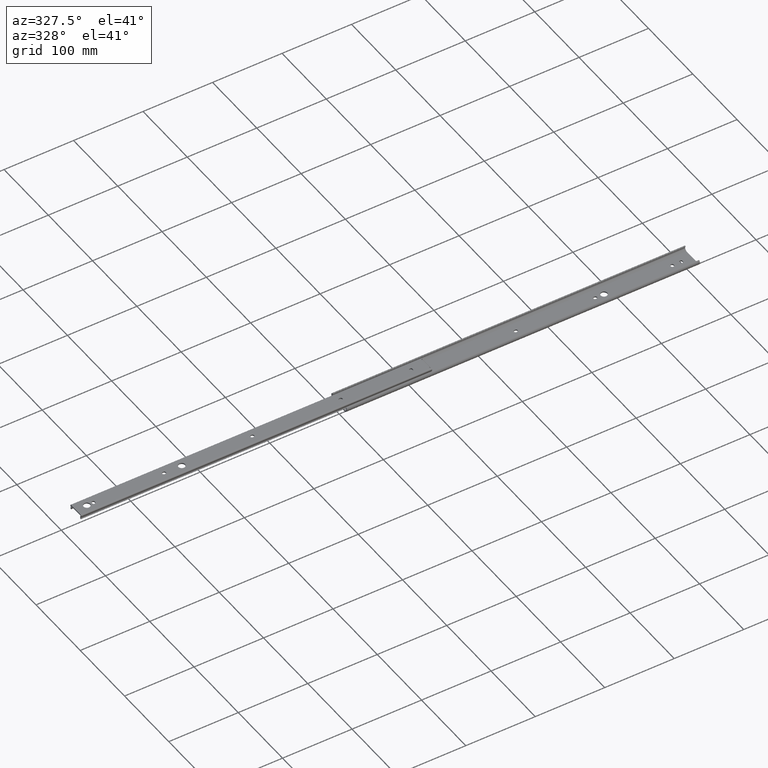
[diagram: clean part render]
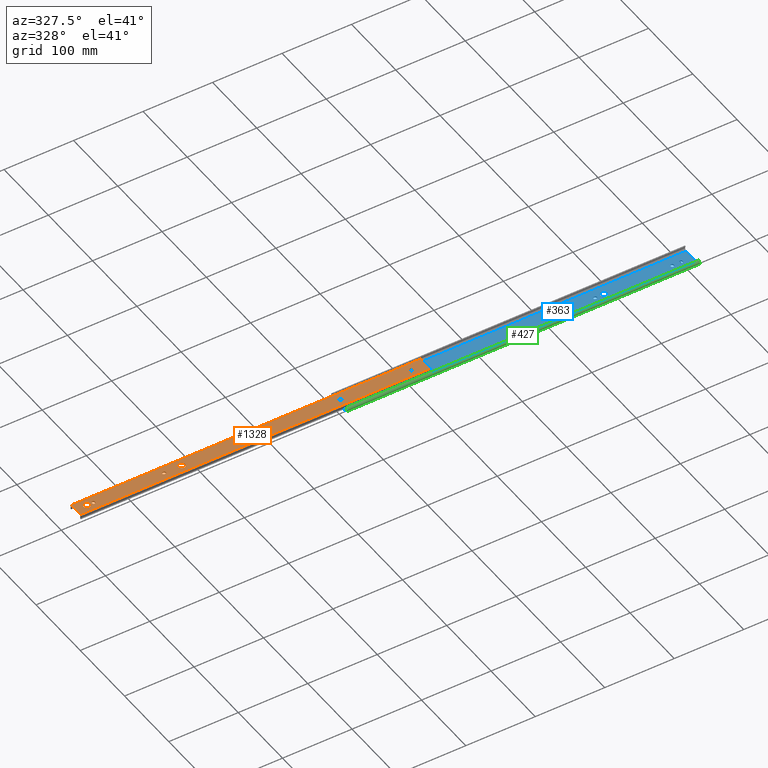
[diagram: same view with three faces highlighted in distinct colors, each labeled with its STEP entity id]
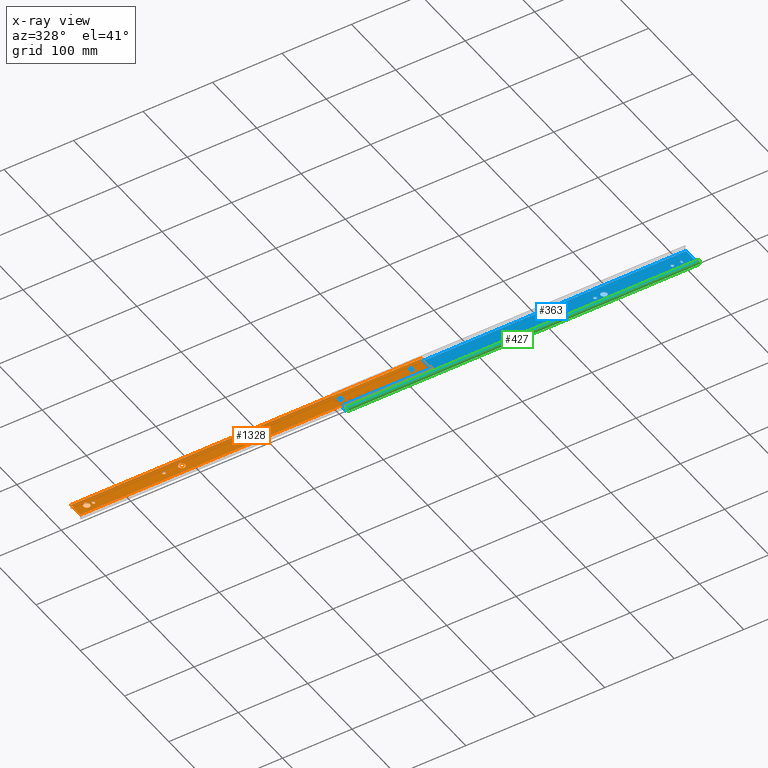
[diagram: x-ray of the same camera — body ghosted, the three highlighted faces saturated]
A machine part, auxiliary view with three faces highlighted in distinct colors.
The next image is the same camera in x-ray (body ghosted, the three faces saturated) — at least one of them is partly hidden behind the body in this view.
Their STEP definitions:

[orange] entity #1328 — the highlighted planar face has unit normal (0, 0, 1).
#2 = DIRECTION ( 'NONE',  ( 0.0000000000000000000, 1.000000000000000000, 0.0000000000000000000 ) ) ;
#32 = CARTESIAN_POINT ( 'NONE',  ( 482.5999999999999700, -0.4000000000000092900, 0.0000000000000000000 ) ) ;
#35 = CARTESIAN_POINT ( 'NONE',  ( 152.4000000000000100, 0.0000000000000000000, 0.0000000000000000000 ) ) ;
#65 = FACE_OUTER_BOUND ( 'NONE', #712, .T. ) ;
#74 = LINE ( 'NONE', #2935, #2507 ) ;
#81 = DIRECTION ( 'NONE',  ( 0.0000000000000000000, 0.0000000000000000000, 1.000000000000000000 ) ) ;
#86 = DIRECTION ( 'NONE',  ( 1.000000000000000000, 0.0000000000000000000, 0.0000000000000000000 ) ) ;
#88 = CARTESIAN_POINT ( 'NONE',  ( 503.3999999999999800, 0.0000000000000000000, 0.0000000000000000000 ) ) ;
#108 = EDGE_CURVE ( 'NONE', #1448, #3903, #3783, .T. ) ;
#117 = ORIENTED_EDGE ( 'NONE', *, *, #873, .F. ) ;
#120 = CIRCLE ( 'NONE', #730, 2.249999999999974200 ) ;
#137 = DIRECTION ( 'NONE',  ( 0.0000000000000000000, 0.0000000000000000000, 1.000000000000000000 ) ) ;
#151 = CARTESIAN_POINT ( 'NONE',  ( 505.0000000000000000, 9.799999999999993600, 0.0000000000000000000 ) ) ;
#179 = VERTEX_POINT ( 'NONE', #3019 ) ;
#199 = ORIENTED_EDGE ( 'NONE', *, *, #1190, .F. ) ;
#217 = CIRCLE ( 'NONE', #3415, 4.750000000000004400 ) ;
#219 = CARTESIAN_POINT ( 'NONE',  ( 380.5999999999999700, 2.249999999999947200, 0.0000000000000000000 ) ) ;
#225 = EDGE_CURVE ( 'NONE', #2088, #3443, #74, .T. ) ;
#227 = ORIENTED_EDGE ( 'NONE', *, *, #2655, .F. ) ;
#232 = ORIENTED_EDGE ( 'NONE', *, *, #1025, .F. ) ;
#235 = DIRECTION ( 'NONE',  ( 0.0000000000000000000, 0.0000000000000000000, 1.000000000000000000 ) ) ;
#252 = ORIENTED_EDGE ( 'NONE', *, *, #4129, .F. ) ;
#259 = EDGE_CURVE ( 'NONE', #179, #1049, #1576, .T. ) ;
#261 = DIRECTION ( 'NONE',  ( 0.0000000000000000000, 0.0000000000000000000, 1.000000000000000000 ) ) ;
#286 = EDGE_LOOP ( 'NONE', ( #1586, #345 ) ) ;
#287 = VERTEX_POINT ( 'NONE', #151 ) ;
#289 = AXIS2_PLACEMENT_3D ( 'NONE', #2034, #137, #2346 ) ;
#291 = CARTESIAN_POINT ( 'NONE',  ( 126.5999999999999900, -2.250000000000005800, 0.0000000000000000000 ) ) ;
#306 = LINE ( 'NONE', #4115, #1899 ) ;
#312 = LINE ( 'NONE', #291, #2761 ) ;
#328 = CARTESIAN_POINT ( 'NONE',  ( 126.5999999999999900, 2.476904576198428100E-015, 0.0000000000000000000 ) ) ;
#340 = DIRECTION ( 'NONE',  ( 0.0000000000000000000, 0.0000000000000000000, 1.000000000000000000 ) ) ;
#345 = ORIENTED_EDGE ( 'NONE', *, *, #2667, .F. ) ;
#348 = DIRECTION ( 'NONE',  ( 1.000000000000000000, 0.0000000000000000000, 0.0000000000000000000 ) ) ;
#354 = CIRCLE ( 'NONE', #3116, 2.250000000000001800 ) ;
#355 = AXIS2_PLACEMENT_3D ( 'NONE', #793, #81, #2724 ) ;
#367 = CARTESIAN_POINT ( 'NONE',  ( 505.0000000000000000, 0.0000000000000000000, 0.0000000000000000000 ) ) ;
#374 = DIRECTION ( 'NONE',  ( 1.000000000000000000, 0.0000000000000000000, 0.0000000000000000000 ) ) ;
#387 = EDGE_CURVE ( 'NONE', #1851, #3759, #120, .T. ) ;
#403 = DIRECTION ( 'NONE',  ( -0.0000000000000000000, 1.000000000000000000, -0.0000000000000000000 ) ) ;
#407 = LINE ( 'NONE', #3483, #2851 ) ;
#411 = VECTOR ( 'NONE', #403, 1000.000000000000000 ) ;
#418 = ORIENTED_EDGE ( 'NONE', *, *, #2444, .F. ) ;
#419 = ORIENTED_EDGE ( 'NONE', *, *, #108, .F. ) ;
#423 = ORIENTED_EDGE ( 'NONE', *, *, #387, .F. ) ;
#455 = CIRCLE ( 'NONE', #2035, 2.250000000000001800 ) ;
#459 = CARTESIAN_POINT ( 'NONE',  ( 482.5999999999999700, 0.3999999999999867600, 0.0000000000000000000 ) ) ;
#463 = CIRCLE ( 'NONE', #2101, 4.750000000000004400 ) ;
#509 = CARTESIAN_POINT ( 'NONE',  ( 11.15000000000000000, 5.817072295949927400E-016, 0.0000000000000000000 ) ) ;
#517 = LINE ( 'NONE', #88, #411 ) ;
#526 = DIRECTION ( 'NONE',  ( -0.0000000000000000000, 1.000000000000000000, -0.0000000000000000000 ) ) ;
#530 = CARTESIAN_POINT ( 'NONE',  ( 503.3999999999999800, -8.199999999999999300, 0.0000000000000000000 ) ) ;
#564 = CIRCLE ( 'NONE', #3522, 2.249999999999974200 ) ;
#570 = VECTOR ( 'NONE', #2592, 1000.000000000000000 ) ;
#578 = CARTESIAN_POINT ( 'NONE',  ( 23.14999999999999900, -0.3999999999999946900, 0.0000000000000000000 ) ) ;
#579 = DIRECTION ( 'NONE',  ( 0.0000000000000000000, 0.0000000000000000000, 1.000000000000000000 ) ) ;
#611 = CARTESIAN_POINT ( 'NONE',  ( 505.0000000000000000, -10.42509259386300400, 2.168404344971008900E-016 ) ) ;
#632 = CARTESIAN_POINT ( 'NONE',  ( 254.4000000000000100, 7.078553336297639100E-015, 0.0000000000000000000 ) ) ;
#701 = VERTEX_POINT ( 'NONE', #219 ) ;
#705 = VECTOR ( 'NONE', #2784, 1000.000000000000000 ) ;
#708 = EDGE_CURVE ( 'NONE', #4137, #2525, #312, .T. ) ;
#712 = EDGE_LOOP ( 'NONE', ( #2490, #1687, #227, #3518, #1645, #3385, #232, #1221, #1787, #2305 ) ) ;
#716 = DIRECTION ( 'NONE',  ( 0.0000000000000000000, 0.0000000000000000000, 1.000000000000000000 ) ) ;
#726 = EDGE_CURVE ( 'NONE', #4064, #3045, #1271, .T. ) ;
#730 = AXIS2_PLACEMENT_3D ( 'NONE', #632, #4124, #2407 ) ;
#750 = DIRECTION ( 'NONE',  ( 1.000000000000000000, -0.0000000000000000000, -0.0000000000000000000 ) ) ;
#761 = DIRECTION ( 'NONE',  ( -1.000000000000000000, -0.0000000000000000000, -0.0000000000000000000 ) ) ;
#768 = CIRCLE ( 'NONE', #1572, 4.750000000000000900 ) ;
#769 = EDGE_CURVE ( 'NONE', #1049, #1167, #3411, .T. ) ;
#780 = DIRECTION ( 'NONE',  ( 0.0000000000000000000, 1.000000000000000000, 0.0000000000000000000 ) ) ;
#793 = CARTESIAN_POINT ( 'NONE',  ( 15.90000000000000000, 0.0000000000000000000, 0.0000000000000000000 ) ) ;
#842 = CARTESIAN_POINT ( 'NONE',  ( 27.65000000000000200, -0.3999999999999999700, 0.0000000000000000000 ) ) ;
#873 = EDGE_CURVE ( 'NONE', #981, #2029, #3105, .T. ) ;
#881 = CARTESIAN_POINT ( 'NONE',  ( 253.5999999999999900, -2.250000000000033800, 0.0000000000000000000 ) ) ;
#888 = CARTESIAN_POINT ( 'NONE',  ( 254.4000000000000100, -2.249999999999992900, 0.0000000000000000000 ) ) ;
#912 = VERTEX_POINT ( 'NONE', #1447 ) ;
#919 = FACE_BOUND ( 'NONE', #1364, .T. ) ;
#943 = VERTEX_POINT ( 'NONE', #3061 ) ;
#954 = AXIS2_PLACEMENT_3D ( 'NONE', #2130, #235, #2449 ) ;
#956 = CARTESIAN_POINT ( 'NONE',  ( 256.6499999999999800, 7.078553336297639100E-015, 0.0000000000000000000 ) ) ;
#981 = VERTEX_POINT ( 'NONE', #509 ) ;
#994 = EDGE_CURVE ( 'NONE', #2251, #3932, #4039, .T. ) ;
#1007 = EDGE_CURVE ( 'NONE', #2525, #2695, #1274, .T. ) ;
#1025 = EDGE_CURVE ( 'NONE', #3045, #2942, #2110, .T. ) ;
#1041 = ORIENTED_EDGE ( 'NONE', *, *, #3387, .F. ) ;
#1049 = VERTEX_POINT ( 'NONE', #3409 ) ;
#1059 = CARTESIAN_POINT ( 'NONE',  ( 505.0000000000000000, 10.42509259386300400, 2.168404344971008900E-016 ) ) ;
#1064 = EDGE_CURVE ( 'NONE', #1167, #2775, #1909, .T. ) ;
#1083 = VERTEX_POINT ( 'NONE', #842 ) ;
#1084 = CARTESIAN_POINT ( 'NONE',  ( 254.4000000000000100, 2.249999999999965800, 0.0000000000000000000 ) ) ;
#1102 = VERTEX_POINT ( 'NONE', #1718 ) ;
#1125 = VECTOR ( 'NONE', #1291, 1000.000000000000000 ) ;
#1150 = ORIENTED_EDGE ( 'NONE', *, *, #2205, .F. ) ;
#1151 = ORIENTED_EDGE ( 'NONE', *, *, #2458, .F. ) ;
#1167 = VERTEX_POINT ( 'NONE', #2413 ) ;
#1172 = VECTOR ( 'NONE', #761, 1000.000000000000000 ) ;
#1176 = CARTESIAN_POINT ( 'NONE',  ( 126.5999999999999900, 2.249999999999993800, 0.0000000000000000000 ) ) ;
#1182 = AXIS2_PLACEMENT_3D ( 'NONE', #1523, #3762, #1835 ) ;
#1184 = ORIENTED_EDGE ( 'NONE', *, *, #769, .F. ) ;
#1190 = EDGE_CURVE ( 'NONE', #2029, #981, #768, .T. ) ;
#1204 = DIRECTION ( 'NONE',  ( -0.0000000000000000000, 1.000000000000000000, -0.0000000000000000000 ) ) ;
#1221 = ORIENTED_EDGE ( 'NONE', *, *, #726, .F. ) ;
#1258 = LINE ( 'NONE', #2208, #2179 ) ;
#1263 = CARTESIAN_POINT ( 'NONE',  ( 503.3999999999999800, 9.799999999999993600, 0.0000000000000000000 ) ) ;
#1267 = CARTESIAN_POINT ( 'NONE',  ( 484.8499999999999700, 0.4000000000000090200, 0.0000000000000000000 ) ) ;
#1270 = VECTOR ( 'NONE', #2, 1000.000000000000000 ) ;
#1271 = LINE ( 'NONE', #3657, #1172 ) ;
#1274 = CIRCLE ( 'NONE', #2260, 2.250000000000001800 ) ;
#1291 = DIRECTION ( 'NONE',  ( 0.0000000000000000000, -1.000000000000000000, 0.0000000000000000000 ) ) ;
#1300 = VERTEX_POINT ( 'NONE', #1782 ) ;
#1302 = DIRECTION ( 'NONE',  ( 1.000000000000000000, 0.0000000000000000000, 0.0000000000000000000 ) ) ;
#1328 = ADVANCED_FACE ( 'NONE', ( #2810, #1865, #3556, #3465, #2596, #1757, #919, #65 ), #3944, .T. ) ;
#1341 = DIRECTION ( 'NONE',  ( -1.000000000000000000, -0.0000000000000000000, -0.0000000000000000000 ) ) ;
#1343 = CARTESIAN_POINT ( 'NONE',  ( 25.39999999999999900, 0.3999999999999960800, 0.0000000000000000000 ) ) ;
#1346 = EDGE_CURVE ( 'NONE', #1300, #2572, #1660, .T. ) ;
#1364 = EDGE_LOOP ( 'NONE', ( #199, #117 ) ) ;
#1376 = DIRECTION ( 'NONE',  ( -1.000000000000000000, -0.0000000000000000000, -0.0000000000000000000 ) ) ;
#1400 = EDGE_CURVE ( 'NONE', #4064, #3443, #3925, .T. ) ;
#1417 = CARTESIAN_POINT ( 'NONE',  ( 15.90000000000000000, 0.0000000000000000000, 0.0000000000000000000 ) ) ;
#1421 = LINE ( 'NONE', #3856, #1125 ) ;
#1446 = AXIS2_PLACEMENT_3D ( 'NONE', #2236, #340, #2566 ) ;
#1447 = CARTESIAN_POINT ( 'NONE',  ( 27.65000000000000200, 0.3999999999999960800, 0.0000000000000000000 ) ) ;
#1448 = VERTEX_POINT ( 'NONE', #2470 ) ;
#1459 = CARTESIAN_POINT ( 'NONE',  ( 127.4000000000000200, 2.249999999999993800, 0.0000000000000000000 ) ) ;
#1523 = CARTESIAN_POINT ( 'NONE',  ( 127.4000000000000200, 2.574876320130218100E-015, 0.0000000000000000000 ) ) ;
#1535 = EDGE_CURVE ( 'NONE', #287, #2570, #3610, .T. ) ;
#1541 = EDGE_CURVE ( 'NONE', #3089, #3713, #217, .T. ) ;
#1572 = AXIS2_PLACEMENT_3D ( 'NONE', #1417, #2387, #3638 ) ;
#1576 = CIRCLE ( 'NONE', #2513, 2.249999999999974200 ) ;
#1577 = CARTESIAN_POINT ( 'NONE',  ( 381.4000000000000900, 2.249999999999947200, 0.0000000000000000000 ) ) ;
#1580 = DIRECTION ( 'NONE',  ( -1.000000000000000000, -0.0000000000000000000, -0.0000000000000000000 ) ) ;
#1581 = CARTESIAN_POINT ( 'NONE',  ( 20.65000000000000200, 0.0000000000000000000, 0.0000000000000000000 ) ) ;
#1586 = ORIENTED_EDGE ( 'NONE', *, *, #1541, .F. ) ;
#1645 = ORIENTED_EDGE ( 'NONE', *, *, #1535, .T. ) ;
#1660 = CIRCLE ( 'NONE', #3062, 2.249999999999974200 ) ;
#1671 = DIRECTION ( 'NONE',  ( 1.000000000000000000, 0.0000000000000000000, 0.0000000000000000000 ) ) ;
#1676 = ORIENTED_EDGE ( 'NONE', *, *, #1711, .F. ) ;
#1685 = EDGE_CURVE ( 'NONE', #2530, #1083, #455, .T. ) ;
#1687 = ORIENTED_EDGE ( 'NONE', *, *, #2754, .T. ) ;
#1699 = ORIENTED_EDGE ( 'NONE', *, *, #2939, .F. ) ;
#1704 = VECTOR ( 'NONE', #526, 1000.000000000000000 ) ;
#1711 = EDGE_CURVE ( 'NONE', #3932, #4137, #354, .T. ) ;
#1718 = CARTESIAN_POINT ( 'NONE',  ( 253.5999999999999900, 2.249999999999965800, 0.0000000000000000000 ) ) ;
#1750 = CIRCLE ( 'NONE', #289, 2.249999999999974200 ) ;
#1757 = FACE_BOUND ( 'NONE', #286, .T. ) ;
#1760 = CARTESIAN_POINT ( 'NONE',  ( 127.4000000000000200, 2.574876320130218100E-015, 0.0000000000000000000 ) ) ;
#1782 = CARTESIAN_POINT ( 'NONE',  ( 383.6500000000000300, 5.247495259473523100E-014, 0.0000000000000000000 ) ) ;
#1787 = ORIENTED_EDGE ( 'NONE', *, *, #1400, .T. ) ;
#1792 = ORIENTED_EDGE ( 'NONE', *, *, #1064, .F. ) ;
#1809 = VERTEX_POINT ( 'NONE', #888 ) ;
#1824 = DIRECTION ( 'NONE',  ( 0.0000000000000000000, 0.0000000000000000000, 1.000000000000000000 ) ) ;
#1829 = EDGE_CURVE ( 'NONE', #2257, #2530, #3358, .T. ) ;
#1835 = DIRECTION ( 'NONE',  ( 1.000000000000000000, 0.0000000000000000000, 0.0000000000000000000 ) ) ;
#1851 = VERTEX_POINT ( 'NONE', #956 ) ;
#1857 = CARTESIAN_POINT ( 'NONE',  ( 503.3999999999999800, 8.199999999999999300, 0.0000000000000000000 ) ) ;
#1864 = CARTESIAN_POINT ( 'NONE',  ( 127.4000000000000200, -2.249999999999997300, 0.0000000000000000000 ) ) ;
#1865 = FACE_BOUND ( 'NONE', #2429, .T. ) ;
#1877 = CARTESIAN_POINT ( 'NONE',  ( 381.4000000000000900, 5.247495259473523100E-014, 0.0000000000000000000 ) ) ;
#1886 = ORIENTED_EDGE ( 'NONE', *, *, #1829, .F. ) ;
#1899 = VECTOR ( 'NONE', #1204, 1000.000000000000000 ) ;
#1909 = CIRCLE ( 'NONE', #2709, 2.249999999999974200 ) ;
#1934 = CARTESIAN_POINT ( 'NONE',  ( 25.39999999999999900, -0.3999999999999999700, 0.0000000000000000000 ) ) ;
#1936 = VERTEX_POINT ( 'NONE', #530 ) ;
#1947 = CARTESIAN_POINT ( 'NONE',  ( 23.14999999999999900, 0.3999999999999951400, 0.0000000000000000000 ) ) ;
#1970 = EDGE_CURVE ( 'NONE', #1083, #912, #306, .T. ) ;
#1972 = DIRECTION ( 'NONE',  ( 1.000000000000000000, 0.0000000000000000000, 0.0000000000000000000 ) ) ;
#1978 = DIRECTION ( 'NONE',  ( 0.0000000000000000000, 0.0000000000000000000, 1.000000000000000000 ) ) ;
#1987 = CARTESIAN_POINT ( 'NONE',  ( 505.0000000000000000, -9.800000000000007800, 0.0000000000000000000 ) ) ;
#2018 = EDGE_CURVE ( 'NONE', #287, #3235, #2955, .T. ) ;
#2029 = VERTEX_POINT ( 'NONE', #1581 ) ;
#2034 = CARTESIAN_POINT ( 'NONE',  ( 380.5999999999999700, -6.162975822039154700E-030, 0.0000000000000000000 ) ) ;
#2035 = AXIS2_PLACEMENT_3D ( 'NONE', #1934, #716, #374 ) ;
#2042 = CARTESIAN_POINT ( 'NONE',  ( 23.15000000000000600, 0.3999999999999951400, 0.0000000000000000000 ) ) ;
#2057 = CARTESIAN_POINT ( 'NONE',  ( 157.1500000000000100, 0.0000000000000000000, 0.0000000000000000000 ) ) ;
#2073 = EDGE_LOOP ( 'NONE', ( #1676, #2992, #1151, #3509, #3356 ) ) ;
#2083 = CARTESIAN_POINT ( 'NONE',  ( 503.3999999999999800, -9.800000000000007800, 0.0000000000000000000 ) ) ;
#2088 = VERTEX_POINT ( 'NONE', #2083 ) ;
#2101 = AXIS2_PLACEMENT_3D ( 'NONE', #35, #2245, #348 ) ;
#2107 = VECTOR ( 'NONE', #3586, 1000.000000000000000 ) ;
#2110 = LINE ( 'NONE', #2120, #3728 ) ;
#2120 = CARTESIAN_POINT ( 'NONE',  ( 0.0000000000000000000, 0.0000000000000000000, 0.0000000000000000000 ) ) ;
#2130 = CARTESIAN_POINT ( 'NONE',  ( 381.4000000000000900, 5.247495259473523100E-014, 0.0000000000000000000 ) ) ;
#2144 = DIRECTION ( 'NONE',  ( 0.0000000000000000000, 1.000000000000000000, 0.0000000000000000000 ) ) ;
#2179 = VECTOR ( 'NONE', #2534, 1000.000000000000000 ) ;
#2201 = EDGE_LOOP ( 'NONE', ( #1792, #1184, #3625, #252 ) ) ;
#2205 = EDGE_CURVE ( 'NONE', #943, #1809, #3661, .T. ) ;
#2208 = CARTESIAN_POINT ( 'NONE',  ( 480.3500000000000200, 0.4000000000000092900, 0.0000000000000000000 ) ) ;
#2236 = CARTESIAN_POINT ( 'NONE',  ( 253.5999999999999900, 6.931595720399953300E-015, 0.0000000000000000000 ) ) ;
#2245 = DIRECTION ( 'NONE',  ( 0.0000000000000000000, 0.0000000000000000000, 1.000000000000000000 ) ) ;
#2251 = VERTEX_POINT ( 'NONE', #1459 ) ;
#2257 = VERTEX_POINT ( 'NONE', #2042 ) ;
#2260 = AXIS2_PLACEMENT_3D ( 'NONE', #1760, #1824, #1972 ) ;
#2263 = EDGE_LOOP ( 'NONE', ( #1041, #3629, #3500, #1886 ) ) ;
#2281 = DIRECTION ( 'NONE',  ( 1.000000000000000000, 0.0000000000000000000, 0.0000000000000000000 ) ) ;
#2286 = VECTOR ( 'NONE', #780, 1000.000000000000000 ) ;
#2298 = EDGE_LOOP ( 'NONE', ( #2857, #3147, #2742, #418, #419 ) ) ;
#2305 = ORIENTED_EDGE ( 'NONE', *, *, #225, .F. ) ;
#2346 = DIRECTION ( 'NONE',  ( 1.000000000000000000, 0.0000000000000000000, 0.0000000000000000000 ) ) ;
#2367 = DIRECTION ( 'NONE',  ( 1.000000000000000000, 0.0000000000000000000, 0.0000000000000000000 ) ) ;
#2370 = DIRECTION ( 'NONE',  ( 1.000000000000000000, 0.0000000000000000000, 0.0000000000000000000 ) ) ;
#2387 = DIRECTION ( 'NONE',  ( 0.0000000000000000000, 0.0000000000000000000, 1.000000000000000000 ) ) ;
#2407 = DIRECTION ( 'NONE',  ( 1.000000000000000000, 0.0000000000000000000, 0.0000000000000000000 ) ) ;
#2413 = CARTESIAN_POINT ( 'NONE',  ( 484.8499999999999700, 0.4000000000000090200, 0.0000000000000000000 ) ) ;
#2429 = EDGE_LOOP ( 'NONE', ( #2531, #2833, #423, #1699, #1150 ) ) ;
#2436 = CARTESIAN_POINT ( 'NONE',  ( 126.5999999999999900, 2.249999999999993800, 0.0000000000000000000 ) ) ;
#2438 = CIRCLE ( 'NONE', #1446, 2.249999999999974200 ) ;
#2444 = EDGE_CURVE ( 'NONE', #3903, #1300, #3623, .T. ) ;
#2449 = DIRECTION ( 'NONE',  ( 1.000000000000000000, 0.0000000000000000000, 0.0000000000000000000 ) ) ;
#2458 = EDGE_CURVE ( 'NONE', #2695, #2251, #2773, .T. ) ;
#2470 = CARTESIAN_POINT ( 'NONE',  ( 380.5999999999999700, -2.250000000000052400, 0.0000000000000000000 ) ) ;
#2487 = LINE ( 'NONE', #2496, #3237 ) ;
#2490 = ORIENTED_EDGE ( 'NONE', *, *, #4021, .F. ) ;
#2496 = CARTESIAN_POINT ( 'NONE',  ( 503.3999999999999800, 9.799999999999993600, 0.0000000000000000000 ) ) ;
#2507 = VECTOR ( 'NONE', #750, 1000.000000000000000 ) ;
#2513 = AXIS2_PLACEMENT_3D ( 'NONE', #32, #3300, #3281 ) ;
#2525 = VERTEX_POINT ( 'NONE', #1864 ) ;
#2530 = VERTEX_POINT ( 'NONE', #578 ) ;
#2531 = ORIENTED_EDGE ( 'NONE', *, *, #3318, .F. ) ;
#2534 = DIRECTION ( 'NONE',  ( 0.0000000000000000000, -1.000000000000000000, 0.0000000000000000000 ) ) ;
#2566 = DIRECTION ( 'NONE',  ( 1.000000000000000000, 0.0000000000000000000, 0.0000000000000000000 ) ) ;
#2570 = VERTEX_POINT ( 'NONE', #2834 ) ;
#2572 = VERTEX_POINT ( 'NONE', #1577 ) ;
#2592 = DIRECTION ( 'NONE',  ( 1.000000000000000000, 0.0000000000000000000, 0.0000000000000000000 ) ) ;
#2596 = FACE_BOUND ( 'NONE', #2263, .T. ) ;
#2652 = CARTESIAN_POINT ( 'NONE',  ( 147.6500000000000100, 5.817072295949932400E-016, 0.0000000000000000000 ) ) ;
#2655 = EDGE_CURVE ( 'NONE', #3235, #3178, #1421, .T. ) ;
#2667 = EDGE_CURVE ( 'NONE', #3713, #3089, #463, .T. ) ;
#2673 = CARTESIAN_POINT ( 'NONE',  ( 505.0000000000000000, 0.0000000000000000000, 0.0000000000000000000 ) ) ;
#2684 = CARTESIAN_POINT ( 'NONE',  ( 0.0000000000000000000, -10.42509259386300400, 2.168404344971008900E-016 ) ) ;
#2695 = VERTEX_POINT ( 'NONE', #3871 ) ;
#2697 = VECTOR ( 'NONE', #1376, 1000.000000000000000 ) ;
#2709 = AXIS2_PLACEMENT_3D ( 'NONE', #459, #3094, #2367 ) ;
#2724 = DIRECTION ( 'NONE',  ( 1.000000000000000000, 0.0000000000000000000, 0.0000000000000000000 ) ) ;
#2742 = ORIENTED_EDGE ( 'NONE', *, *, #1346, .F. ) ;
#2752 = EDGE_CURVE ( 'NONE', #2572, #701, #3823, .T. ) ;
#2754 = EDGE_CURVE ( 'NONE', #1936, #3178, #517, .T. ) ;
#2761 = VECTOR ( 'NONE', #2370, 1000.000000000000000 ) ;
#2773 = CIRCLE ( 'NONE', #1182, 2.250000000000001800 ) ;
#2775 = VERTEX_POINT ( 'NONE', #2963 ) ;
#2784 = DIRECTION ( 'NONE',  ( 0.0000000000000000000, -1.000000000000000000, 0.0000000000000000000 ) ) ;
#2798 = CARTESIAN_POINT ( 'NONE',  ( 505.0000000000000000, 9.799999999999993600, 0.0000000000000000000 ) ) ;
#2804 = LINE ( 'NONE', #1059, #2697 ) ;
#2810 = FACE_BOUND ( 'NONE', #2298, .T. ) ;
#2829 = DIRECTION ( 'NONE',  ( 0.0000000000000000000, -1.000000000000000000, 0.0000000000000000000 ) ) ;
#2833 = ORIENTED_EDGE ( 'NONE', *, *, #3224, .F. ) ;
#2834 = CARTESIAN_POINT ( 'NONE',  ( 505.0000000000000000, 10.42509259386300400, 2.168404344971008900E-016 ) ) ;
#2851 = VECTOR ( 'NONE', #1580, 1000.000000000000000 ) ;
#2857 = ORIENTED_EDGE ( 'NONE', *, *, #3531, .F. ) ;
#2866 = DIRECTION ( 'NONE',  ( 1.000000000000000000, 0.0000000000000000000, -0.0000000000000000000 ) ) ;
#2867 = CARTESIAN_POINT ( 'NONE',  ( 126.5999999999999900, -2.250000000000005800, 0.0000000000000000000 ) ) ;
#2935 = CARTESIAN_POINT ( 'NONE',  ( 505.0000000000000000, -9.800000000000007800, 0.0000000000000000000 ) ) ;
#2939 = EDGE_CURVE ( 'NONE', #1809, #1851, #564, .T. ) ;
#2942 = VERTEX_POINT ( 'NONE', #3583 ) ;
#2955 = LINE ( 'NONE', #2798, #3299 ) ;
#2963 = CARTESIAN_POINT ( 'NONE',  ( 480.3500000000000200, 0.4000000000000092900, 0.0000000000000000000 ) ) ;
#2992 = ORIENTED_EDGE ( 'NONE', *, *, #994, .F. ) ;
#3019 = CARTESIAN_POINT ( 'NONE',  ( 480.3500000000000200, -0.4000000000000090200, 0.0000000000000000000 ) ) ;
#3045 = VERTEX_POINT ( 'NONE', #2684 ) ;
#3061 = CARTESIAN_POINT ( 'NONE',  ( 253.5999999999999900, -2.250000000000033800, 0.0000000000000000000 ) ) ;
#3062 = AXIS2_PLACEMENT_3D ( 'NONE', #1877, #4142, #3834 ) ;
#3080 = CARTESIAN_POINT ( 'NONE',  ( 381.4000000000000900, -2.249999999999947200, 0.0000000000000000000 ) ) ;
#3089 = VERTEX_POINT ( 'NONE', #2057 ) ;
#3094 = DIRECTION ( 'NONE',  ( 0.0000000000000000000, 0.0000000000000000000, 1.000000000000000000 ) ) ;
#3105 = CIRCLE ( 'NONE', #355, 4.750000000000000900 ) ;
#3116 = AXIS2_PLACEMENT_3D ( 'NONE', #328, #579, #1302 ) ;
#3147 = ORIENTED_EDGE ( 'NONE', *, *, #2752, .F. ) ;
#3178 = VERTEX_POINT ( 'NONE', #1857 ) ;
#3224 = EDGE_CURVE ( 'NONE', #3759, #1102, #407, .T. ) ;
#3235 = VERTEX_POINT ( 'NONE', #1263 ) ;
#3237 = VECTOR ( 'NONE', #2829, 1000.000000000000000 ) ;
#3281 = DIRECTION ( 'NONE',  ( 1.000000000000000000, 0.0000000000000000000, 0.0000000000000000000 ) ) ;
#3299 = VECTOR ( 'NONE', #4136, 1000.000000000000000 ) ;
#3300 = DIRECTION ( 'NONE',  ( 0.0000000000000000000, 0.0000000000000000000, 1.000000000000000000 ) ) ;
#3318 = EDGE_CURVE ( 'NONE', #1102, #943, #2438, .T. ) ;
#3327 = DIRECTION ( 'NONE',  ( 0.0000000000000000000, 0.0000000000000000000, 1.000000000000000000 ) ) ;
#3356 = ORIENTED_EDGE ( 'NONE', *, *, #708, .F. ) ;
#3358 = LINE ( 'NONE', #1947, #705 ) ;
#3385 = ORIENTED_EDGE ( 'NONE', *, *, #3481, .T. ) ;
#3387 = EDGE_CURVE ( 'NONE', #912, #2257, #3968, .T. ) ;
#3409 = CARTESIAN_POINT ( 'NONE',  ( 484.8499999999999700, -0.4000000000000090200, 0.0000000000000000000 ) ) ;
#3411 = LINE ( 'NONE', #1267, #1704 ) ;
#3415 = AXIS2_PLACEMENT_3D ( 'NONE', #3916, #3327, #3901 ) ;
#3443 = VERTEX_POINT ( 'NONE', #1987 ) ;
#3465 = FACE_BOUND ( 'NONE', #2201, .T. ) ;
#3481 = EDGE_CURVE ( 'NONE', #2570, #2942, #2804, .T. ) ;
#3483 = CARTESIAN_POINT ( 'NONE',  ( 253.5999999999999900, 2.249999999999965800, 0.0000000000000000000 ) ) ;
#3500 = ORIENTED_EDGE ( 'NONE', *, *, #1685, .F. ) ;
#3509 = ORIENTED_EDGE ( 'NONE', *, *, #1007, .F. ) ;
#3518 = ORIENTED_EDGE ( 'NONE', *, *, #2018, .F. ) ;
#3522 = AXIS2_PLACEMENT_3D ( 'NONE', #3924, #1978, #86 ) ;
#3531 = EDGE_CURVE ( 'NONE', #701, #1448, #1750, .T. ) ;
#3546 = VECTOR ( 'NONE', #2281, 1000.000000000000000 ) ;
#3556 = FACE_BOUND ( 'NONE', #2073, .T. ) ;
#3578 = AXIS2_PLACEMENT_3D ( 'NONE', #1343, #3579, #1671 ) ;
#3579 = DIRECTION ( 'NONE',  ( 0.0000000000000000000, 0.0000000000000000000, 1.000000000000000000 ) ) ;
#3583 = CARTESIAN_POINT ( 'NONE',  ( 0.0000000000000000000, 10.42509259386300400, 2.168404344971008900E-016 ) ) ;
#3586 = DIRECTION ( 'NONE',  ( -1.000000000000000000, -0.0000000000000000000, -0.0000000000000000000 ) ) ;
#3591 = CARTESIAN_POINT ( 'NONE',  ( 505.0000000000000000, 0.0000000000000000000, 0.0000000000000000000 ) ) ;
#3610 = LINE ( 'NONE', #367, #1270 ) ;
#3623 = CIRCLE ( 'NONE', #954, 2.249999999999974200 ) ;
#3625 = ORIENTED_EDGE ( 'NONE', *, *, #259, .F. ) ;
#3629 = ORIENTED_EDGE ( 'NONE', *, *, #1970, .F. ) ;
#3638 = DIRECTION ( 'NONE',  ( 1.000000000000000000, 0.0000000000000000000, 0.0000000000000000000 ) ) ;
#3657 = CARTESIAN_POINT ( 'NONE',  ( 505.0000000000000000, -10.42509259386300400, 2.168404344971008900E-016 ) ) ;
#3661 = LINE ( 'NONE', #881, #3546 ) ;
#3713 = VERTEX_POINT ( 'NONE', #2652 ) ;
#3718 = AXIS2_PLACEMENT_3D ( 'NONE', #3591, #261, #2866 ) ;
#3728 = VECTOR ( 'NONE', #2144, 1000.000000000000000 ) ;
#3759 = VERTEX_POINT ( 'NONE', #1084 ) ;
#3762 = DIRECTION ( 'NONE',  ( 0.0000000000000000000, 0.0000000000000000000, 1.000000000000000000 ) ) ;
#3783 = LINE ( 'NONE', #3920, #570 ) ;
#3823 = LINE ( 'NONE', #3928, #2107 ) ;
#3825 = VECTOR ( 'NONE', #1341, 1000.000000000000000 ) ;
#3834 = DIRECTION ( 'NONE',  ( 1.000000000000000000, 0.0000000000000000000, 0.0000000000000000000 ) ) ;
#3856 = CARTESIAN_POINT ( 'NONE',  ( 503.3999999999999800, 9.799999999999993600, 0.0000000000000000000 ) ) ;
#3871 = CARTESIAN_POINT ( 'NONE',  ( 129.6500000000000100, 2.574876320130218100E-015, 0.0000000000000000000 ) ) ;
#3901 = DIRECTION ( 'NONE',  ( 1.000000000000000000, 0.0000000000000000000, 0.0000000000000000000 ) ) ;
#3903 = VERTEX_POINT ( 'NONE', #3080 ) ;
#3916 = CARTESIAN_POINT ( 'NONE',  ( 152.4000000000000100, 0.0000000000000000000, 0.0000000000000000000 ) ) ;
#3920 = CARTESIAN_POINT ( 'NONE',  ( 380.5999999999999700, -2.250000000000052400, 0.0000000000000000000 ) ) ;
#3924 = CARTESIAN_POINT ( 'NONE',  ( 254.4000000000000100, 7.078553336297639100E-015, 0.0000000000000000000 ) ) ;
#3925 = LINE ( 'NONE', #2673, #2286 ) ;
#3928 = CARTESIAN_POINT ( 'NONE',  ( 380.5999999999999700, 2.249999999999947200, 0.0000000000000000000 ) ) ;
#3932 = VERTEX_POINT ( 'NONE', #2436 ) ;
#3944 = PLANE ( 'NONE',  #3718 ) ;
#3968 = CIRCLE ( 'NONE', #3578, 2.250000000000001800 ) ;
#4021 = EDGE_CURVE ( 'NONE', #1936, #2088, #2487, .T. ) ;
#4039 = LINE ( 'NONE', #1176, #3825 ) ;
#4064 = VERTEX_POINT ( 'NONE', #611 ) ;
#4115 = CARTESIAN_POINT ( 'NONE',  ( 27.65000000000000200, 0.3999999999999960800, 0.0000000000000000000 ) ) ;
#4124 = DIRECTION ( 'NONE',  ( 0.0000000000000000000, 0.0000000000000000000, 1.000000000000000000 ) ) ;
#4129 = EDGE_CURVE ( 'NONE', #2775, #179, #1258, .T. ) ;
#4136 = DIRECTION ( 'NONE',  ( -1.000000000000000000, -1.084202172485473500E-015, 0.0000000000000000000 ) ) ;
#4137 = VERTEX_POINT ( 'NONE', #2867 ) ;
#4142 = DIRECTION ( 'NONE',  ( 0.0000000000000000000, 0.0000000000000000000, 1.000000000000000000 ) ) ;

[blue] entity #363 — the highlighted planar face has unit normal (0, 0, 1).
#6 = ORIENTED_EDGE ( 'NONE', *, *, #3325, .F. ) ;
#12 = VECTOR ( 'NONE', #1571, 1000.000000000000000 ) ;
#24 = LINE ( 'NONE', #274, #774 ) ;
#29 = VERTEX_POINT ( 'NONE', #2978 ) ;
#44 = DIRECTION ( 'NONE',  ( 1.000000000000000000, 0.0000000000000000000, 0.0000000000000000000 ) ) ;
#46 = VERTEX_POINT ( 'NONE', #2599 ) ;
#48 = CARTESIAN_POINT ( 'NONE',  ( 492.1000000000000200, -0.3999999999999659400, 1.599999999999872400 ) ) ;
#70 = VERTEX_POINT ( 'NONE', #1694 ) ;
#82 = CARTESIAN_POINT ( 'NONE',  ( 381.0000000000000000, 0.0000000000000000000, 1.599999999999872400 ) ) ;
#83 = CARTESIAN_POINT ( 'NONE',  ( 494.3500000000000200, -0.3999999999999647700, 1.599999999999872400 ) ) ;
#89 = CARTESIAN_POINT ( 'NONE',  ( 508.0000000000000000, 0.0000000000000000000, 1.599999999999872400 ) ) ;
#105 = EDGE_CURVE ( 'NONE', #4009, #150, #2061, .T. ) ;
#121 = EDGE_CURVE ( 'NONE', #70, #4090, #1956, .T. ) ;
#128 = CARTESIAN_POINT ( 'NONE',  ( 15.90000000000000000, 0.3999999999999950800, 1.599999999999872400 ) ) ;
#133 = DIRECTION ( 'NONE',  ( 0.0000000000000000000, 0.0000000000000000000, 1.000000000000000000 ) ) ;
#135 = VERTEX_POINT ( 'NONE', #195 ) ;
#136 = AXIS2_PLACEMENT_3D ( 'NONE', #4116, #2169, #280 ) ;
#141 = CARTESIAN_POINT ( 'NONE',  ( 40.89999999999999100, -2.250000000000001300, 1.599999999999872400 ) ) ;
#144 = VERTEX_POINT ( 'NONE', #767 ) ;
#150 = VERTEX_POINT ( 'NONE', #723 ) ;
#153 = CARTESIAN_POINT ( 'NONE',  ( 13.64999999999999900, -0.3999999999999946400, 1.599999999999872400 ) ) ;
#154 = ORIENTED_EDGE ( 'NONE', *, *, #2419, .F. ) ;
#160 = CIRCLE ( 'NONE', #4036, 2.249999999999974200 ) ;
#170 = ORIENTED_EDGE ( 'NONE', *, *, #933, .F. ) ;
#183 = CARTESIAN_POINT ( 'NONE',  ( 40.89999999999999100, 4.974404535978835700E-015, 1.599999999999872400 ) ) ;
#195 = CARTESIAN_POINT ( 'NONE',  ( 1.912740249771085900E-015, -8.000000000000000000, 1.599999999999872400 ) ) ;
#202 = ORIENTED_EDGE ( 'NONE', *, *, #2028, .F. ) ;
#224 = FACE_BOUND ( 'NONE', #468, .T. ) ;
#237 = DIRECTION ( 'NONE',  ( 0.0000000000000000000, 0.0000000000000000000, 1.000000000000000000 ) ) ;
#243 = EDGE_CURVE ( 'NONE', #135, #4009, #4133, .T. ) ;
#244 = DIRECTION ( 'NONE',  ( 0.0000000000000000000, 0.0000000000000000000, 1.000000000000000000 ) ) ;
#260 = LINE ( 'NONE', #3266, #3550 ) ;
#274 = CARTESIAN_POINT ( 'NONE',  ( 508.0000000000000000, -13.40000000000004700, 1.599999999999872400 ) ) ;
#275 = VERTEX_POINT ( 'NONE', #2974 ) ;
#280 = DIRECTION ( 'NONE',  ( 1.000000000000000000, 0.0000000000000000000, 0.0000000000000000000 ) ) ;
#292 = VERTEX_POINT ( 'NONE', #3268 ) ;
#309 = AXIS2_PLACEMENT_3D ( 'NONE', #537, #2779, #871 ) ;
#314 = VECTOR ( 'NONE', #3605, 1000.000000000000000 ) ;
#317 = FACE_BOUND ( 'NONE', #619, .T. ) ;
#324 = EDGE_CURVE ( 'NONE', #1769, #975, #3067, .T. ) ;
#325 = CARTESIAN_POINT ( 'NONE',  ( 489.8500000000000800, -0.4000000000000845100, 1.599999999999872400 ) ) ;
#327 = CARTESIAN_POINT ( 'NONE',  ( 126.5999999999999900, -2.250000000000007500, 1.599999999999872400 ) ) ;
#331 = CARTESIAN_POINT ( 'NONE',  ( 368.6999999999999300, 2.249999999999959100, 1.599999999999872400 ) ) ;
#350 = LINE ( 'NONE', #805, #1942 ) ;
#363 = ADVANCED_FACE ( 'NONE', ( #2769, #317, #2111, #1911, #1076, #224, #3511, #2651, #1815, #971 ), #3974, .T. ) ;
#375 = VERTEX_POINT ( 'NONE', #83 ) ;
#389 = ORIENTED_EDGE ( 'NONE', *, *, #939, .F. ) ;
#391 = ORIENTED_EDGE ( 'NONE', *, *, #1195, .F. ) ;
#412 = CARTESIAN_POINT ( 'NONE',  ( 13.64999999999999900, 0.3999999999999946400, 1.599999999999872400 ) ) ;
#420 = CARTESIAN_POINT ( 'NONE',  ( 253.5999999999999900, 2.249999999999972000, 1.599999999999872400 ) ) ;
#424 = AXIS2_PLACEMENT_3D ( 'NONE', #3682, #1751, #4007 ) ;
#451 = LINE ( 'NONE', #141, #1214 ) ;
#468 = EDGE_LOOP ( 'NONE', ( #3701, #170, #2970, #3617 ) ) ;
#481 = ORIENTED_EDGE ( 'NONE', *, *, #3603, .F. ) ;
#505 = VERTEX_POINT ( 'NONE', #1199 ) ;
#522 = AXIS2_PLACEMENT_3D ( 'NONE', #733, #1473, #1640 ) ;
#537 = CARTESIAN_POINT ( 'NONE',  ( 253.5999999999999900, 2.032511081555321600E-014, 1.599999999999872400 ) ) ;
#552 = VECTOR ( 'NONE', #1499, 1000.000000000000000 ) ;
#577 = AXIS2_PLACEMENT_3D ( 'NONE', #2989, #3576, #2980 ) ;
#583 = DIRECTION ( 'NONE',  ( 0.0000000000000000000, 0.0000000000000000000, 1.000000000000000000 ) ) ;
#589 = CARTESIAN_POINT ( 'NONE',  ( 18.15000000000000200, 0.3999999999999964100, 1.599999999999872400 ) ) ;
#593 = ORIENTED_EDGE ( 'NONE', *, *, #3153, .F. ) ;
#609 = LINE ( 'NONE', #1185, #3716 ) ;
#617 = VERTEX_POINT ( 'NONE', #325 ) ;
#619 = EDGE_LOOP ( 'NONE', ( #154, #4152, #1592, #481, #4054 ) ) ;
#641 = EDGE_CURVE ( 'NONE', #2623, #29, #4034, .T. ) ;
#643 = DIRECTION ( 'NONE',  ( 0.0000000000000000000, 0.0000000000000000000, 1.000000000000000000 ) ) ;
#662 = CIRCLE ( 'NONE', #1776, 2.250000000000001800 ) ;
#687 = DIRECTION ( 'NONE',  ( 1.000000000000000000, 0.0000000000000000000, 0.0000000000000000000 ) ) ;
#689 = ORIENTED_EDGE ( 'NONE', *, *, #3853, .F. ) ;
#698 = LINE ( 'NONE', #4134, #2384 ) ;
#717 = CIRCLE ( 'NONE', #1434, 2.250000000000001800 ) ;
#723 = CARTESIAN_POINT ( 'NONE',  ( 3.800000000000001600, -6.999999999999999100, 1.599999999999872400 ) ) ;
#733 = CARTESIAN_POINT ( 'NONE',  ( 508.0000000000000000, 0.0000000000000000000, 1.599999999999872400 ) ) ;
#736 = EDGE_CURVE ( 'NONE', #3091, #1360, #1905, .T. ) ;
#747 = ORIENTED_EDGE ( 'NONE', *, *, #1509, .F. ) ;
#767 = CARTESIAN_POINT ( 'NONE',  ( 30.85000000000000100, 0.4000000000000043000, 1.599999999999872400 ) ) ;
#774 = VECTOR ( 'NONE', #918, 1000.000000000000000 ) ;
#775 = CARTESIAN_POINT ( 'NONE',  ( 3.799999999999999800, 8.000000000000000000, 1.599999999999872400 ) ) ;
#795 = EDGE_CURVE ( 'NONE', #3844, #3329, #3306, .T. ) ;
#799 = CARTESIAN_POINT ( 'NONE',  ( 376.2500000000000000, 5.817072295949971800E-016, 1.599999999999872400 ) ) ;
#805 = CARTESIAN_POINT ( 'NONE',  ( 494.3500000000000200, 0.4000000000000859000, 1.599999999999872400 ) ) ;
#812 = CIRCLE ( 'NONE', #136, 2.249999999999974200 ) ;
#813 = DIRECTION ( 'NONE',  ( 0.0000000000000000000, -1.000000000000000000, 0.0000000000000000000 ) ) ;
#816 = ORIENTED_EDGE ( 'NONE', *, *, #2971, .F. ) ;
#822 = DIRECTION ( 'NONE',  ( -0.0000000000000000000, 1.000000000000000000, -0.0000000000000000000 ) ) ;
#844 = DIRECTION ( 'NONE',  ( 1.000000000000000000, 0.0000000000000000000, 0.0000000000000000000 ) ) ;
#871 = DIRECTION ( 'NONE',  ( 1.000000000000000000, 0.0000000000000000000, 0.0000000000000000000 ) ) ;
#876 = ORIENTED_EDGE ( 'NONE', *, *, #955, .F. ) ;
#892 = EDGE_CURVE ( 'NONE', #3568, #2623, #2238, .T. ) ;
#900 = CARTESIAN_POINT ( 'NONE',  ( 126.5999999999999900, 2.249999999999992000, 1.599999999999872400 ) ) ;
#918 = DIRECTION ( 'NONE',  ( -1.000000000000000000, -0.0000000000000000000, -0.0000000000000000000 ) ) ;
#927 = DIRECTION ( 'NONE',  ( 0.0000000000000000000, 1.000000000000000000, 0.0000000000000000000 ) ) ;
#933 = EDGE_CURVE ( 'NONE', #1487, #1074, #2506, .T. ) ;
#937 = CARTESIAN_POINT ( 'NONE',  ( 370.9499999999999900, 4.053093348848866200E-014, 1.599999999999872400 ) ) ;
#939 = EDGE_CURVE ( 'NONE', #1236, #1873, #2400, .T. ) ;
#949 = ORIENTED_EDGE ( 'NONE', *, *, #243, .F. ) ;
#955 = EDGE_CURVE ( 'NONE', #46, #3068, #717, .T. ) ;
#971 = FACE_OUTER_BOUND ( 'NONE', #2881, .T. ) ;
#975 = VERTEX_POINT ( 'NONE', #1101 ) ;
#1005 = AXIS2_PLACEMENT_3D ( 'NONE', #183, #244, #3312 ) ;
#1008 = LINE ( 'NONE', #420, #3455 ) ;
#1046 = CARTESIAN_POINT ( 'NONE',  ( 367.8999999999999800, 2.249999999999959100, 1.599999999999872400 ) ) ;
#1068 = VECTOR ( 'NONE', #3567, 1000.000000000000000 ) ;
#1074 = VERTEX_POINT ( 'NONE', #1152 ) ;
#1076 = FACE_BOUND ( 'NONE', #1132, .T. ) ;
#1081 = AXIS2_PLACEMENT_3D ( 'NONE', #1477, #3707, #1780 ) ;
#1082 = CARTESIAN_POINT ( 'NONE',  ( 367.8999999999999800, 0.0000000000000000000, 1.599999999999872400 ) ) ;
#1100 = AXIS2_PLACEMENT_3D ( 'NONE', #3365, #1456, #3696 ) ;
#1101 = CARTESIAN_POINT ( 'NONE',  ( 13.64999999999999500, 0.3999999999999946400, 1.599999999999872400 ) ) ;
#1108 = VERTEX_POINT ( 'NONE', #2749 ) ;
#1120 = AXIS2_PLACEMENT_3D ( 'NONE', #2603, #237, #2135 ) ;
#1129 = CARTESIAN_POINT ( 'NONE',  ( 477.1500000000000900, 0.4000000000000018500, 1.599999999999872400 ) ) ;
#1132 = EDGE_LOOP ( 'NONE', ( #2558, #1450, #3598, #816 ) ) ;
#1138 = EDGE_LOOP ( 'NONE', ( #389, #202, #6, #391, #3837 ) ) ;
#1142 = VERTEX_POINT ( 'NONE', #1843 ) ;
#1148 = CARTESIAN_POINT ( 'NONE',  ( 253.5999999999999900, 2.249999999999972000, 1.599999999999872400 ) ) ;
#1149 = DIRECTION ( 'NONE',  ( 0.0000000000000000000, -1.000000000000000000, 0.0000000000000000000 ) ) ;
#1152 = CARTESIAN_POINT ( 'NONE',  ( 481.6500000000000300, 0.4000000000000033500, 1.599999999999872400 ) ) ;
#1175 = LINE ( 'NONE', #2621, #314 ) ;
#1181 = VECTOR ( 'NONE', #3087, 1000.000000000000000 ) ;
#1185 = CARTESIAN_POINT ( 'NONE',  ( 508.0000000000000000, 13.40000000000004700, 1.599999999999872400 ) ) ;
#1187 = CARTESIAN_POINT ( 'NONE',  ( 3.799999999999999800, 8.000000000000000000, 1.599999999999872400 ) ) ;
#1194 = CARTESIAN_POINT ( 'NONE',  ( 0.0000000000000000000, 0.0000000000000000000, 1.599999999999872400 ) ) ;
#1195 = EDGE_CURVE ( 'NONE', #1142, #3333, #662, .T. ) ;
#1199 = CARTESIAN_POINT ( 'NONE',  ( 0.0000000000000000000, -13.40000000000004700, 1.599999999999872400 ) ) ;
#1214 = VECTOR ( 'NONE', #2385, 1000.000000000000000 ) ;
#1219 = EDGE_CURVE ( 'NONE', #3068, #3568, #2241, .T. ) ;
#1224 = CARTESIAN_POINT ( 'NONE',  ( 254.4000000000000100, 2.047206843145090000E-014, 1.599999999999872400 ) ) ;
#1230 = EDGE_CURVE ( 'NONE', #1360, #1769, #3109, .T. ) ;
#1231 = VECTOR ( 'NONE', #2290, 1000.000000000000000 ) ;
#1236 = VERTEX_POINT ( 'NONE', #1728 ) ;
#1239 = CARTESIAN_POINT ( 'NONE',  ( 3.799999999999999800, 7.000000000000000000, 1.599999999999872400 ) ) ;
#1243 = EDGE_CURVE ( 'NONE', #3689, #1487, #3008, .T. ) ;
#1273 = ORIENTED_EDGE ( 'NONE', *, *, #1219, .F. ) ;
#1276 = EDGE_CURVE ( 'NONE', #292, #3212, #1315, .T. ) ;
#1296 = CARTESIAN_POINT ( 'NONE',  ( 385.7500000000000600, 0.0000000000000000000, 1.599999999999872400 ) ) ;
#1299 = VERTEX_POINT ( 'NONE', #1129 ) ;
#1313 = LINE ( 'NONE', #3599, #1414 ) ;
#1315 = LINE ( 'NONE', #89, #3776 ) ;
#1360 = VERTEX_POINT ( 'NONE', #3030 ) ;
#1368 = EDGE_CURVE ( 'NONE', #1299, #3689, #3363, .T. ) ;
#1390 = DIRECTION ( 'NONE',  ( 1.000000000000000000, 0.0000000000000000000, 0.0000000000000000000 ) ) ;
#1398 = ORIENTED_EDGE ( 'NONE', *, *, #1941, .T. ) ;
#1414 = VECTOR ( 'NONE', #2304, 1000.000000000000000 ) ;
#1418 = VECTOR ( 'NONE', #2065, 1000.000000000000000 ) ;
#1434 = AXIS2_PLACEMENT_3D ( 'NONE', #1786, #2950, #4061 ) ;
#1450 = ORIENTED_EDGE ( 'NONE', *, *, #2180, .F. ) ;
#1453 = EDGE_CURVE ( 'NONE', #3329, #3844, #3723, .T. ) ;
#1456 = DIRECTION ( 'NONE',  ( 0.0000000000000000000, 0.0000000000000000000, 1.000000000000000000 ) ) ;
#1473 = DIRECTION ( 'NONE',  ( 0.0000000000000000000, 0.0000000000000000000, 1.000000000000000000 ) ) ;
#1477 = CARTESIAN_POINT ( 'NONE',  ( 28.60000000000000100, 0.4000000000000039600, 1.599999999999872400 ) ) ;
#1485 = ORIENTED_EDGE ( 'NONE', *, *, #3910, .F. ) ;
#1486 = DIRECTION ( 'NONE',  ( 1.000000000000000000, 0.0000000000000000000, 0.0000000000000000000 ) ) ;
#1487 = VERTEX_POINT ( 'NONE', #2250 ) ;
#1491 = EDGE_CURVE ( 'NONE', #2658, #3231, #1992, .T. ) ;
#1499 = DIRECTION ( 'NONE',  ( -1.084202172485504400E-016, 1.000000000000000000, -0.0000000000000000000 ) ) ;
#1504 = CARTESIAN_POINT ( 'NONE',  ( 126.5999999999999900, -2.250000000000007500, 1.599999999999872400 ) ) ;
#1505 = VERTEX_POINT ( 'NONE', #331 ) ;
#1509 = EDGE_CURVE ( 'NONE', #4090, #3527, #1904, .T. ) ;
#1522 = DIRECTION ( 'NONE',  ( 0.0000000000000000000, 0.0000000000000000000, 1.000000000000000000 ) ) ;
#1527 = ORIENTED_EDGE ( 'NONE', *, *, #2780, .F. ) ;
#1540 = DIRECTION ( 'NONE',  ( 1.000000000000000000, 0.0000000000000000000, 0.0000000000000000000 ) ) ;
#1545 = EDGE_LOOP ( 'NONE', ( #689, #1887, #3131, #593 ) ) ;
#1563 = CIRCLE ( 'NONE', #1120, 2.250000000000001800 ) ;
#1571 = DIRECTION ( 'NONE',  ( -1.000000000000000000, -0.0000000000000000000, -0.0000000000000000000 ) ) ;
#1582 = AXIS2_PLACEMENT_3D ( 'NONE', #3690, #1765, #4023 ) ;
#1592 = ORIENTED_EDGE ( 'NONE', *, *, #3169, .F. ) ;
#1604 = LINE ( 'NONE', #4147, #12 ) ;
#1624 = EDGE_CURVE ( 'NONE', #150, #4011, #3199, .T. ) ;
#1629 = CARTESIAN_POINT ( 'NONE',  ( 43.95000000000000300, 5.072376279910624100E-015, 1.599999999999872400 ) ) ;
#1640 = DIRECTION ( 'NONE',  ( 1.000000000000000000, 0.0000000000000000000, -0.0000000000000000000 ) ) ;
#1694 = CARTESIAN_POINT ( 'NONE',  ( 3.799999999999999800, 8.000000000000000000, 1.599999999999872400 ) ) ;
#1721 = AXIS2_PLACEMENT_3D ( 'NONE', #4091, #2448, #844 ) ;
#1728 = CARTESIAN_POINT ( 'NONE',  ( 40.89999999999999100, 2.249999999999998700, 1.599999999999872400 ) ) ;
#1731 = CARTESIAN_POINT ( 'NONE',  ( 381.0000000000000000, 0.0000000000000000000, 1.599999999999872400 ) ) ;
#1732 = EDGE_CURVE ( 'NONE', #617, #375, #2807, .T. ) ;
#1751 = DIRECTION ( 'NONE',  ( 0.0000000000000000000, 0.0000000000000000000, 1.000000000000000000 ) ) ;
#1752 = VECTOR ( 'NONE', #3170, 1000.000000000000000 ) ;
#1756 = DIRECTION ( 'NONE',  ( 0.0000000000000000000, 1.000000000000000000, 0.0000000000000000000 ) ) ;
#1765 = DIRECTION ( 'NONE',  ( 0.0000000000000000000, 0.0000000000000000000, 1.000000000000000000 ) ) ;
#1769 = VERTEX_POINT ( 'NONE', #589 ) ;
#1772 = EDGE_CURVE ( 'NONE', #1505, #3651, #2700, .T. ) ;
#1776 = AXIS2_PLACEMENT_3D ( 'NONE', #3654, #133, #3290 ) ;
#1780 = DIRECTION ( 'NONE',  ( 1.000000000000000000, 0.0000000000000000000, 0.0000000000000000000 ) ) ;
#1786 = CARTESIAN_POINT ( 'NONE',  ( 127.4000000000000200, 1.579959826756716300E-014, 1.599999999999872400 ) ) ;
#1797 = VERTEX_POINT ( 'NONE', #2217 ) ;
#1799 = CIRCLE ( 'NONE', #424, 2.249999999999974200 ) ;
#1815 = FACE_BOUND ( 'NONE', #2888, .T. ) ;
#1817 = DIRECTION ( 'NONE',  ( 0.0000000000000000000, 0.0000000000000000000, 1.000000000000000000 ) ) ;
#1826 = VERTEX_POINT ( 'NONE', #2266 ) ;
#1841 = EDGE_LOOP ( 'NONE', ( #3234, #2033, #3587, #3793 ) ) ;
#1843 = CARTESIAN_POINT ( 'NONE',  ( 41.70000000000001700, -2.249999999999994700, 1.599999999999872400 ) ) ;
#1858 = VECTOR ( 'NONE', #3279, 1000.000000000000000 ) ;
#1873 = VERTEX_POINT ( 'NONE', #4141 ) ;
#1887 = ORIENTED_EDGE ( 'NONE', *, *, #2433, .F. ) ;
#1888 = CARTESIAN_POINT ( 'NONE',  ( 0.0000000000000000000, 8.000000000000000000, 1.599999999999872400 ) ) ;
#1900 = EDGE_CURVE ( 'NONE', #3275, #3995, #1563, .T. ) ;
#1903 = CARTESIAN_POINT ( 'NONE',  ( 26.34999999999999800, -0.4000000000000036300, 1.599999999999872400 ) ) ;
#1904 = LINE ( 'NONE', #1194, #1068 ) ;
#1905 = CIRCLE ( 'NONE', #1721, 2.250000000000001800 ) ;
#1907 = AXIS2_PLACEMENT_3D ( 'NONE', #82, #2565, #687 ) ;
#1911 = FACE_BOUND ( 'NONE', #1138, .T. ) ;
#1916 = ORIENTED_EDGE ( 'NONE', *, *, #2533, .F. ) ;
#1938 = DIRECTION ( 'NONE',  ( 0.0000000000000000000, 0.0000000000000000000, 1.000000000000000000 ) ) ;
#1939 = CARTESIAN_POINT ( 'NONE',  ( 0.0000000000000000000, 8.000000000000000000, 1.599999999999872400 ) ) ;
#1941 = EDGE_CURVE ( 'NONE', #3212, #3527, #609, .T. ) ;
#1942 = VECTOR ( 'NONE', #822, 1000.000000000000000 ) ;
#1944 = LINE ( 'NONE', #412, #1858 ) ;
#1956 = LINE ( 'NONE', #1939, #2912 ) ;
#1992 = CIRCLE ( 'NONE', #2982, 2.249999999999974200 ) ;
#2003 = ORIENTED_EDGE ( 'NONE', *, *, #4058, .F. ) ;
#2019 = CARTESIAN_POINT ( 'NONE',  ( 3.799999999999999800, 8.000000000000000000, 1.599999999999872400 ) ) ;
#2028 = EDGE_CURVE ( 'NONE', #1797, #1236, #1604, .T. ) ;
#2033 = ORIENTED_EDGE ( 'NONE', *, *, #1230, .F. ) ;
#2061 = LINE ( 'NONE', #2019, #1231 ) ;
#2065 = DIRECTION ( 'NONE',  ( -1.000000000000000000, -0.0000000000000000000, -0.0000000000000000000 ) ) ;
#2086 = ORIENTED_EDGE ( 'NONE', *, *, #3175, .F. ) ;
#2111 = FACE_BOUND ( 'NONE', #3383, .T. ) ;
#2135 = DIRECTION ( 'NONE',  ( 1.000000000000000000, 0.0000000000000000000, 0.0000000000000000000 ) ) ;
#2156 = EDGE_CURVE ( 'NONE', #1873, #1142, #451, .T. ) ;
#2169 = DIRECTION ( 'NONE',  ( 0.0000000000000000000, 0.0000000000000000000, 1.000000000000000000 ) ) ;
#2180 = EDGE_CURVE ( 'NONE', #375, #2359, #350, .T. ) ;
#2190 = CIRCLE ( 'NONE', #2576, 2.249999999999974200 ) ;
#2217 = CARTESIAN_POINT ( 'NONE',  ( 41.70000000000001700, 2.249999999999998700, 1.599999999999872400 ) ) ;
#2225 = ORIENTED_EDGE ( 'NONE', *, *, #892, .F. ) ;
#2226 = EDGE_CURVE ( 'NONE', #3287, #3863, #1008, .T. ) ;
#2228 = CARTESIAN_POINT ( 'NONE',  ( 368.6999999999999300, -2.249999999999959600, 1.599999999999872400 ) ) ;
#2238 = CIRCLE ( 'NONE', #577, 2.250000000000001800 ) ;
#2241 = LINE ( 'NONE', #900, #1418 ) ;
#2250 = CARTESIAN_POINT ( 'NONE',  ( 481.6500000000000300, -0.3999999999999918100, 1.599999999999872400 ) ) ;
#2266 = CARTESIAN_POINT ( 'NONE',  ( 489.8500000000000800, 0.4000000000000852300, 1.599999999999872400 ) ) ;
#2273 = AXIS2_PLACEMENT_3D ( 'NONE', #3879, #1938, #44 ) ;
#2274 = EDGE_LOOP ( 'NONE', ( #2842, #3482, #3461, #3652, #1527 ) ) ;
#2290 = DIRECTION ( 'NONE',  ( -1.084202172485504400E-016, 1.000000000000000000, -0.0000000000000000000 ) ) ;
#2295 = CARTESIAN_POINT ( 'NONE',  ( 367.8999999999999800, -2.250000000000040400, 1.599999999999872400 ) ) ;
#2299 = ORIENTED_EDGE ( 'NONE', *, *, #641, .F. ) ;
#2304 = DIRECTION ( 'NONE',  ( 0.0000000000000000000, -1.000000000000000000, 0.0000000000000000000 ) ) ;
#2312 = CARTESIAN_POINT ( 'NONE',  ( 0.0000000000000000000, 13.40000000000004700, 1.599999999999872400 ) ) ;
#2329 = CIRCLE ( 'NONE', #2273, 2.250000000000001800 ) ;
#2332 = VECTOR ( 'NONE', #2946, 1000.000000000000000 ) ;
#2359 = VERTEX_POINT ( 'NONE', #2410 ) ;
#2376 = CARTESIAN_POINT ( 'NONE',  ( 477.1500000000000900, 0.4000000000000018500, 1.599999999999872400 ) ) ;
#2384 = VECTOR ( 'NONE', #927, 1000.000000000000000 ) ;
#2385 = DIRECTION ( 'NONE',  ( 1.000000000000000000, 0.0000000000000000000, 0.0000000000000000000 ) ) ;
#2395 = CIRCLE ( 'NONE', #2805, 2.250000000000001800 ) ;
#2396 = VECTOR ( 'NONE', #813, 1000.000000000000000 ) ;
#2400 = CIRCLE ( 'NONE', #1005, 2.250000000000001800 ) ;
#2401 = VECTOR ( 'NONE', #2696, 1000.000000000000000 ) ;
#2409 = AXIS2_PLACEMENT_3D ( 'NONE', #4096, #1817, #2772 ) ;
#2410 = CARTESIAN_POINT ( 'NONE',  ( 494.3500000000000200, 0.4000000000000859000, 1.599999999999872400 ) ) ;
#2419 = EDGE_CURVE ( 'NONE', #3863, #3239, #3731, .T. ) ;
#2433 = EDGE_CURVE ( 'NONE', #3995, #144, #2862, .T. ) ;
#2440 = CARTESIAN_POINT ( 'NONE',  ( 18.15000000000000200, 0.3999999999999964100, 1.599999999999872400 ) ) ;
#2448 = DIRECTION ( 'NONE',  ( 0.0000000000000000000, 0.0000000000000000000, 1.000000000000000000 ) ) ;
#2482 = CARTESIAN_POINT ( 'NONE',  ( 127.4000000000000200, 1.579959826756716300E-014, 1.599999999999872400 ) ) ;
#2498 = CIRCLE ( 'NONE', #1100, 2.249999999999974200 ) ;
#2506 = LINE ( 'NONE', #3737, #3369 ) ;
#2533 = EDGE_CURVE ( 'NONE', #292, #505, #24, .T. ) ;
#2556 = VERTEX_POINT ( 'NONE', #2825 ) ;
#2558 = ORIENTED_EDGE ( 'NONE', *, *, #3799, .F. ) ;
#2565 = DIRECTION ( 'NONE',  ( 0.0000000000000000000, 0.0000000000000000000, 1.000000000000000000 ) ) ;
#2576 = AXIS2_PLACEMENT_3D ( 'NONE', #1224, #3449, #1540 ) ;
#2599 = CARTESIAN_POINT ( 'NONE',  ( 129.6500000000000100, 1.579959826756716300E-014, 1.599999999999872400 ) ) ;
#2603 = CARTESIAN_POINT ( 'NONE',  ( 28.60000000000000100, -0.3999999999999919200, 1.599999999999872400 ) ) ;
#2611 = DIRECTION ( 'NONE',  ( 1.000000000000000000, 0.0000000000000000000, 0.0000000000000000000 ) ) ;
#2620 = ORIENTED_EDGE ( 'NONE', *, *, #1453, .F. ) ;
#2621 = CARTESIAN_POINT ( 'NONE',  ( 367.8999999999999800, -2.250000000000040400, 1.599999999999872400 ) ) ;
#2623 = VERTEX_POINT ( 'NONE', #327 ) ;
#2627 = DIRECTION ( 'NONE',  ( 1.000000000000000000, 0.0000000000000000000, 0.0000000000000000000 ) ) ;
#2630 = CARTESIAN_POINT ( 'NONE',  ( 477.1500000000000900, -0.4000000000000016900, 1.599999999999872400 ) ) ;
#2651 = FACE_BOUND ( 'NONE', #1841, .T. ) ;
#2658 = VERTEX_POINT ( 'NONE', #2228 ) ;
#2696 = DIRECTION ( 'NONE',  ( 1.000000000000000000, 0.0000000000000000000, 0.0000000000000000000 ) ) ;
#2700 = LINE ( 'NONE', #3246, #1752 ) ;
#2731 = DIRECTION ( 'NONE',  ( -1.000000000000000000, -0.0000000000000000000, -0.0000000000000000000 ) ) ;
#2733 = ORIENTED_EDGE ( 'NONE', *, *, #121, .F. ) ;
#2749 = CARTESIAN_POINT ( 'NONE',  ( 254.4000000000000100, -2.249999999999979600, 1.599999999999872400 ) ) ;
#2758 = CARTESIAN_POINT ( 'NONE',  ( 30.85000000000000100, 0.4000000000000043000, 1.599999999999872400 ) ) ;
#2769 = FACE_BOUND ( 'NONE', #2274, .T. ) ;
#2772 = DIRECTION ( 'NONE',  ( 1.000000000000000000, 0.0000000000000000000, 0.0000000000000000000 ) ) ;
#2779 = DIRECTION ( 'NONE',  ( 0.0000000000000000000, 0.0000000000000000000, 1.000000000000000000 ) ) ;
#2780 = EDGE_CURVE ( 'NONE', #2964, #2658, #1175, .T. ) ;
#2792 = AXIS2_PLACEMENT_3D ( 'NONE', #1731, #1522, #3076 ) ;
#2805 = AXIS2_PLACEMENT_3D ( 'NONE', #2482, #583, #2818 ) ;
#2807 = CIRCLE ( 'NONE', #3539, 2.249999999999974200 ) ;
#2818 = DIRECTION ( 'NONE',  ( 1.000000000000000000, 0.0000000000000000000, 0.0000000000000000000 ) ) ;
#2825 = CARTESIAN_POINT ( 'NONE',  ( 256.6499999999999800, 2.047206843145090000E-014, 1.599999999999872400 ) ) ;
#2827 = DIRECTION ( 'NONE',  ( -1.000000000000000000, -0.0000000000000000000, -0.0000000000000000000 ) ) ;
#2842 = ORIENTED_EDGE ( 'NONE', *, *, #3503, .F. ) ;
#2862 = LINE ( 'NONE', #2758, #1181 ) ;
#2881 = EDGE_LOOP ( 'NONE', ( #2733, #1485, #3063, #2972, #949, #2003, #1916, #3260, #1398, #747 ) ) ;
#2888 = EDGE_LOOP ( 'NONE', ( #2620, #3491 ) ) ;
#2912 = VECTOR ( 'NONE', #3570, 1000.000000000000000 ) ;
#2946 = DIRECTION ( 'NONE',  ( -1.084202172485504400E-016, 1.000000000000000000, -0.0000000000000000000 ) ) ;
#2950 = DIRECTION ( 'NONE',  ( 0.0000000000000000000, 0.0000000000000000000, 1.000000000000000000 ) ) ;
#2964 = VERTEX_POINT ( 'NONE', #2295 ) ;
#2970 = ORIENTED_EDGE ( 'NONE', *, *, #1243, .F. ) ;
#2971 = EDGE_CURVE ( 'NONE', #1826, #617, #1313, .T. ) ;
#2972 = ORIENTED_EDGE ( 'NONE', *, *, #105, .F. ) ;
#2974 = CARTESIAN_POINT ( 'NONE',  ( 26.34999999999998400, 0.4000000000000037400, 1.599999999999872400 ) ) ;
#2978 = CARTESIAN_POINT ( 'NONE',  ( 127.4000000000000200, -2.249999999999984000, 1.599999999999872400 ) ) ;
#2980 = DIRECTION ( 'NONE',  ( 1.000000000000000000, 0.0000000000000000000, 0.0000000000000000000 ) ) ;
#2982 = AXIS2_PLACEMENT_3D ( 'NONE', #3197, #3513, #3447 ) ;
#2989 = CARTESIAN_POINT ( 'NONE',  ( 126.5999999999999900, 1.565264065166947400E-014, 1.599999999999872400 ) ) ;
#3008 = CIRCLE ( 'NONE', #2409, 2.249999999999974200 ) ;
#3030 = CARTESIAN_POINT ( 'NONE',  ( 18.15000000000000200, -0.4000000000000004700, 1.599999999999872400 ) ) ;
#3051 = CIRCLE ( 'NONE', #1582, 2.249999999999974200 ) ;
#3063 = ORIENTED_EDGE ( 'NONE', *, *, #1624, .F. ) ;
#3067 = CIRCLE ( 'NONE', #3381, 2.250000000000001800 ) ;
#3068 = VERTEX_POINT ( 'NONE', #3334 ) ;
#3076 = DIRECTION ( 'NONE',  ( 1.000000000000000000, 0.0000000000000000000, 0.0000000000000000000 ) ) ;
#3087 = DIRECTION ( 'NONE',  ( -0.0000000000000000000, 1.000000000000000000, -0.0000000000000000000 ) ) ;
#3091 = VERTEX_POINT ( 'NONE', #153 ) ;
#3097 = CIRCLE ( 'NONE', #1081, 2.250000000000001800 ) ;
#3109 = LINE ( 'NONE', #2440, #4084 ) ;
#3118 = EDGE_CURVE ( 'NONE', #3231, #1505, #2498, .T. ) ;
#3131 = ORIENTED_EDGE ( 'NONE', *, *, #1900, .F. ) ;
#3152 = LINE ( 'NONE', #4046, #3922 ) ;
#3153 = EDGE_CURVE ( 'NONE', #275, #3275, #3152, .T. ) ;
#3161 = CARTESIAN_POINT ( 'NONE',  ( 253.5999999999999900, -2.250000000000027500, 1.599999999999872400 ) ) ;
#3169 = EDGE_CURVE ( 'NONE', #2556, #3287, #2190, .T. ) ;
#3170 = DIRECTION ( 'NONE',  ( -1.000000000000000000, -0.0000000000000000000, -0.0000000000000000000 ) ) ;
#3175 = EDGE_CURVE ( 'NONE', #29, #46, #2395, .T. ) ;
#3197 = CARTESIAN_POINT ( 'NONE',  ( 368.7000000000000500, 4.053093348848866200E-014, 1.599999999999872400 ) ) ;
#3199 = LINE ( 'NONE', #775, #2332 ) ;
#3212 = VERTEX_POINT ( 'NONE', #4120 ) ;
#3231 = VERTEX_POINT ( 'NONE', #937 ) ;
#3234 = ORIENTED_EDGE ( 'NONE', *, *, #324, .F. ) ;
#3239 = VERTEX_POINT ( 'NONE', #3161 ) ;
#3246 = CARTESIAN_POINT ( 'NONE',  ( 367.8999999999999800, 2.249999999999959100, 1.599999999999872400 ) ) ;
#3260 = ORIENTED_EDGE ( 'NONE', *, *, #1276, .T. ) ;
#3266 = CARTESIAN_POINT ( 'NONE',  ( 253.5999999999999900, -2.250000000000027500, 1.599999999999872400 ) ) ;
#3268 = CARTESIAN_POINT ( 'NONE',  ( 508.0000000000000000, -13.40000000000004700, 1.599999999999872400 ) ) ;
#3275 = VERTEX_POINT ( 'NONE', #1903 ) ;
#3279 = DIRECTION ( 'NONE',  ( 0.0000000000000000000, -1.000000000000000000, 0.0000000000000000000 ) ) ;
#3287 = VERTEX_POINT ( 'NONE', #3515 ) ;
#3290 = DIRECTION ( 'NONE',  ( 1.000000000000000000, 0.0000000000000000000, 0.0000000000000000000 ) ) ;
#3298 = DIRECTION ( 'NONE',  ( 0.0000000000000000000, 0.0000000000000000000, 1.000000000000000000 ) ) ;
#3306 = CIRCLE ( 'NONE', #2792, 4.750000000000032000 ) ;
#3312 = DIRECTION ( 'NONE',  ( 1.000000000000000000, 0.0000000000000000000, 0.0000000000000000000 ) ) ;
#3325 = EDGE_CURVE ( 'NONE', #3333, #1797, #2329, .T. ) ;
#3329 = VERTEX_POINT ( 'NONE', #1296 ) ;
#3333 = VERTEX_POINT ( 'NONE', #1629 ) ;
#3334 = CARTESIAN_POINT ( 'NONE',  ( 127.4000000000000200, 2.249999999999992000, 1.599999999999872400 ) ) ;
#3362 = DIRECTION ( 'NONE',  ( 1.000000000000000000, 0.0000000000000000000, 0.0000000000000000000 ) ) ;
#3363 = LINE ( 'NONE', #2376, #2396 ) ;
#3365 = CARTESIAN_POINT ( 'NONE',  ( 368.7000000000000500, 4.053093348848866200E-014, 1.599999999999872400 ) ) ;
#3369 = VECTOR ( 'NONE', #3934, 1000.000000000000000 ) ;
#3381 = AXIS2_PLACEMENT_3D ( 'NONE', #128, #3904, #3362 ) ;
#3383 = EDGE_LOOP ( 'NONE', ( #2225, #1273, #876, #2086, #2299 ) ) ;
#3447 = DIRECTION ( 'NONE',  ( 1.000000000000000000, 0.0000000000000000000, 0.0000000000000000000 ) ) ;
#3449 = DIRECTION ( 'NONE',  ( 0.0000000000000000000, 0.0000000000000000000, 1.000000000000000000 ) ) ;
#3454 = EDGE_CURVE ( 'NONE', #3239, #1108, #260, .T. ) ;
#3455 = VECTOR ( 'NONE', #2731, 1000.000000000000000 ) ;
#3461 = ORIENTED_EDGE ( 'NONE', *, *, #3118, .F. ) ;
#3473 = EDGE_CURVE ( 'NONE', #975, #3091, #1944, .T. ) ;
#3482 = ORIENTED_EDGE ( 'NONE', *, *, #1772, .F. ) ;
#3491 = ORIENTED_EDGE ( 'NONE', *, *, #795, .F. ) ;
#3503 = EDGE_CURVE ( 'NONE', #3651, #2964, #160, .T. ) ;
#3511 = FACE_BOUND ( 'NONE', #1545, .T. ) ;
#3513 = DIRECTION ( 'NONE',  ( 0.0000000000000000000, 0.0000000000000000000, 1.000000000000000000 ) ) ;
#3515 = CARTESIAN_POINT ( 'NONE',  ( 254.4000000000000100, 2.249999999999972000, 1.599999999999872400 ) ) ;
#3527 = VERTEX_POINT ( 'NONE', #2312 ) ;
#3539 = AXIS2_PLACEMENT_3D ( 'NONE', #48, #643, #2611 ) ;
#3550 = VECTOR ( 'NONE', #2627, 1000.000000000000000 ) ;
#3567 = DIRECTION ( 'NONE',  ( 0.0000000000000000000, 1.000000000000000000, 0.0000000000000000000 ) ) ;
#3568 = VERTEX_POINT ( 'NONE', #3990 ) ;
#3570 = DIRECTION ( 'NONE',  ( -1.000000000000000000, -0.0000000000000000000, -0.0000000000000000000 ) ) ;
#3576 = DIRECTION ( 'NONE',  ( 0.0000000000000000000, 0.0000000000000000000, 1.000000000000000000 ) ) ;
#3587 = ORIENTED_EDGE ( 'NONE', *, *, #736, .F. ) ;
#3598 = ORIENTED_EDGE ( 'NONE', *, *, #1732, .F. ) ;
#3599 = CARTESIAN_POINT ( 'NONE',  ( 489.8500000000000800, 0.4000000000000852300, 1.599999999999872400 ) ) ;
#3603 = EDGE_CURVE ( 'NONE', #1108, #2556, #3051, .T. ) ;
#3605 = DIRECTION ( 'NONE',  ( 1.000000000000000000, 0.0000000000000000000, 0.0000000000000000000 ) ) ;
#3617 = ORIENTED_EDGE ( 'NONE', *, *, #1368, .F. ) ;
#3646 = CARTESIAN_POINT ( 'NONE',  ( 1.912740249771085900E-015, -8.000000000000000000, 1.599999999999872400 ) ) ;
#3651 = VERTEX_POINT ( 'NONE', #1046 ) ;
#3652 = ORIENTED_EDGE ( 'NONE', *, *, #1491, .F. ) ;
#3654 = CARTESIAN_POINT ( 'NONE',  ( 41.70000000000000300, 5.072376279910624100E-015, 1.599999999999872400 ) ) ;
#3659 = LINE ( 'NONE', #1187, #552 ) ;
#3682 = CARTESIAN_POINT ( 'NONE',  ( 492.1000000000000200, 0.4000000000000856200, 1.599999999999872400 ) ) ;
#3689 = VERTEX_POINT ( 'NONE', #2630 ) ;
#3690 = CARTESIAN_POINT ( 'NONE',  ( 254.4000000000000100, 2.047206843145090000E-014, 1.599999999999872400 ) ) ;
#3696 = DIRECTION ( 'NONE',  ( 1.000000000000000000, 0.0000000000000000000, 0.0000000000000000000 ) ) ;
#3701 = ORIENTED_EDGE ( 'NONE', *, *, #4008, .F. ) ;
#3707 = DIRECTION ( 'NONE',  ( 0.0000000000000000000, 0.0000000000000000000, 1.000000000000000000 ) ) ;
#3716 = VECTOR ( 'NONE', #2827, 1000.000000000000000 ) ;
#3723 = CIRCLE ( 'NONE', #1907, 4.750000000000032000 ) ;
#3731 = CIRCLE ( 'NONE', #309, 2.249999999999974200 ) ;
#3737 = CARTESIAN_POINT ( 'NONE',  ( 481.6500000000000300, 0.4000000000000033500, 1.599999999999872400 ) ) ;
#3776 = VECTOR ( 'NONE', #1756, 1000.000000000000000 ) ;
#3793 = ORIENTED_EDGE ( 'NONE', *, *, #3473, .F. ) ;
#3794 = CARTESIAN_POINT ( 'NONE',  ( 3.800000000000001600, -8.000000000000000000, 1.599999999999872400 ) ) ;
#3799 = EDGE_CURVE ( 'NONE', #2359, #1826, #1799, .T. ) ;
#3822 = VECTOR ( 'NONE', #1486, 1000.000000000000000 ) ;
#3837 = ORIENTED_EDGE ( 'NONE', *, *, #2156, .F. ) ;
#3844 = VERTEX_POINT ( 'NONE', #799 ) ;
#3853 = EDGE_CURVE ( 'NONE', #144, #275, #3097, .T. ) ;
#3863 = VERTEX_POINT ( 'NONE', #1148 ) ;
#3879 = CARTESIAN_POINT ( 'NONE',  ( 41.70000000000000300, 5.072376279910624100E-015, 1.599999999999872400 ) ) ;
#3904 = DIRECTION ( 'NONE',  ( 0.0000000000000000000, 0.0000000000000000000, 1.000000000000000000 ) ) ;
#3910 = EDGE_CURVE ( 'NONE', #4011, #70, #3659, .T. ) ;
#3922 = VECTOR ( 'NONE', #1149, 1000.000000000000000 ) ;
#3934 = DIRECTION ( 'NONE',  ( -0.0000000000000000000, 1.000000000000000000, -0.0000000000000000000 ) ) ;
#3953 = DIRECTION ( 'NONE',  ( -0.0000000000000000000, 1.000000000000000000, -0.0000000000000000000 ) ) ;
#3974 = PLANE ( 'NONE',  #522 ) ;
#3990 = CARTESIAN_POINT ( 'NONE',  ( 126.5999999999999900, 2.249999999999992000, 1.599999999999872400 ) ) ;
#3995 = VERTEX_POINT ( 'NONE', #4095 ) ;
#4007 = DIRECTION ( 'NONE',  ( 1.000000000000000000, 0.0000000000000000000, 0.0000000000000000000 ) ) ;
#4008 = EDGE_CURVE ( 'NONE', #1074, #1299, #812, .T. ) ;
#4009 = VERTEX_POINT ( 'NONE', #3794 ) ;
#4011 = VERTEX_POINT ( 'NONE', #1239 ) ;
#4023 = DIRECTION ( 'NONE',  ( 1.000000000000000000, 0.0000000000000000000, 0.0000000000000000000 ) ) ;
#4034 = LINE ( 'NONE', #1504, #3822 ) ;
#4036 = AXIS2_PLACEMENT_3D ( 'NONE', #1082, #3298, #1390 ) ;
#4046 = CARTESIAN_POINT ( 'NONE',  ( 26.34999999999999800, 0.4000000000000037400, 1.599999999999872400 ) ) ;
#4054 = ORIENTED_EDGE ( 'NONE', *, *, #3454, .F. ) ;
#4058 = EDGE_CURVE ( 'NONE', #505, #135, #698, .T. ) ;
#4061 = DIRECTION ( 'NONE',  ( 1.000000000000000000, 0.0000000000000000000, 0.0000000000000000000 ) ) ;
#4084 = VECTOR ( 'NONE', #3953, 1000.000000000000000 ) ;
#4090 = VERTEX_POINT ( 'NONE', #1888 ) ;
#4091 = CARTESIAN_POINT ( 'NONE',  ( 15.90000000000000000, -0.4000000000000009700, 1.599999999999872400 ) ) ;
#4095 = CARTESIAN_POINT ( 'NONE',  ( 30.85000000000000100, -0.3999999999999919200, 1.599999999999872400 ) ) ;
#4096 = CARTESIAN_POINT ( 'NONE',  ( 479.4000000000000300, -0.3999999999999929700, 1.599999999999872400 ) ) ;
#4116 = CARTESIAN_POINT ( 'NONE',  ( 479.4000000000000300, 0.4000000000000030800, 1.599999999999872400 ) ) ;
#4120 = CARTESIAN_POINT ( 'NONE',  ( 508.0000000000000000, 13.40000000000004700, 1.599999999999872400 ) ) ;
#4133 = LINE ( 'NONE', #3646, #2401 ) ;
#4134 = CARTESIAN_POINT ( 'NONE',  ( 0.0000000000000000000, 0.0000000000000000000, 1.599999999999872400 ) ) ;
#4141 = CARTESIAN_POINT ( 'NONE',  ( 40.89999999999999100, -2.250000000000001300, 1.599999999999872400 ) ) ;
#4147 = CARTESIAN_POINT ( 'NONE',  ( 40.89999999999999100, 2.249999999999998700, 1.599999999999872400 ) ) ;
#4152 = ORIENTED_EDGE ( 'NONE', *, *, #2226, .F. ) ;

[green] entity #427 — the highlighted cylindrical surface (edge-blend (fillet) strip) has radius 4.1 mm, axis along (-1, -0, -0).
#276 = DIRECTION ( 'NONE',  ( 0.0000000000000000000, 0.0000000000000000000, -1.000000000000000000 ) ) ;
#427 = ADVANCED_FACE ( 'NONE', ( #2340 ), #3976, .T. ) ;
#510 = CARTESIAN_POINT ( 'NONE',  ( 508.0000000000000000, -16.45999190110085700, 2.411757085089796200 ) ) ;
#554 = DIRECTION ( 'NONE',  ( 0.0000000000000000000, 0.0000000000000000000, -1.000000000000000000 ) ) ;
#615 = CIRCLE ( 'NONE', #856, 4.099999999999988100 ) ;
#652 = ORIENTED_EDGE ( 'NONE', *, *, #2369, .F. ) ;
#680 = AXIS2_PLACEMENT_3D ( 'NONE', #1664, #2207, #276 ) ;
#776 = VERTEX_POINT ( 'NONE', #3673 ) ;
#800 = CARTESIAN_POINT ( 'NONE',  ( 508.0000000000000000, -15.68541565040558400, 8.799999999999585000 ) ) ;
#856 = AXIS2_PLACEMENT_3D ( 'NONE', #3986, #1222, #554 ) ;
#1113 = VERTEX_POINT ( 'NONE', #1461 ) ;
#1159 = DIRECTION ( 'NONE',  ( -1.000000000000000000, -0.0000000000000000000, -0.0000000000000000000 ) ) ;
#1203 = VERTEX_POINT ( 'NONE', #2806 ) ;
#1222 = DIRECTION ( 'NONE',  ( -1.000000000000000000, -0.0000000000000000000, -0.0000000000000000000 ) ) ;
#1257 = VERTEX_POINT ( 'NONE', #1697 ) ;
#1402 = ORIENTED_EDGE ( 'NONE', *, *, #1408, .F. ) ;
#1408 = EDGE_CURVE ( 'NONE', #1113, #1257, #615, .T. ) ;
#1437 = EDGE_LOOP ( 'NONE', ( #1402, #652, #2173, #3120 ) ) ;
#1461 = CARTESIAN_POINT ( 'NONE',  ( 0.0000000000000000000, -16.45999190110085700, 2.411757085089796200 ) ) ;
#1567 = VECTOR ( 'NONE', #2365, 1000.000000000000000 ) ;
#1664 = CARTESIAN_POINT ( 'NONE',  ( 508.0000000000000000, -13.54999999999967700, 5.299999999999384300 ) ) ;
#1697 = CARTESIAN_POINT ( 'NONE',  ( 0.0000000000000000000, -15.68541565040558400, 8.799999999999585000 ) ) ;
#1743 = DIRECTION ( 'NONE',  ( -1.000000000000000000, -0.0000000000000000000, -0.0000000000000000000 ) ) ;
#1798 = AXIS2_PLACEMENT_3D ( 'NONE', #3757, #1743, #2163 ) ;
#1850 = EDGE_CURVE ( 'NONE', #1203, #776, #4030, .T. ) ;
#1895 = LINE ( 'NONE', #510, #1983 ) ;
#1983 = VECTOR ( 'NONE', #1159, 1000.000000000000000 ) ;
#2163 = DIRECTION ( 'NONE',  ( 0.0000000000000000000, 0.0000000000000000000, 1.000000000000000000 ) ) ;
#2173 = ORIENTED_EDGE ( 'NONE', *, *, #1850, .T. ) ;
#2207 = DIRECTION ( 'NONE',  ( -1.000000000000000000, -0.0000000000000000000, -0.0000000000000000000 ) ) ;
#2340 = FACE_OUTER_BOUND ( 'NONE', #1437, .T. ) ;
#2365 = DIRECTION ( 'NONE',  ( -1.000000000000000000, -0.0000000000000000000, -0.0000000000000000000 ) ) ;
#2369 = EDGE_CURVE ( 'NONE', #1203, #1113, #1895, .T. ) ;
#2806 = CARTESIAN_POINT ( 'NONE',  ( 508.0000000000000000, -16.45999190110085700, 2.411757085089796200 ) ) ;
#3111 = EDGE_CURVE ( 'NONE', #776, #1257, #3248, .T. ) ;
#3120 = ORIENTED_EDGE ( 'NONE', *, *, #3111, .T. ) ;
#3248 = LINE ( 'NONE', #800, #1567 ) ;
#3673 = CARTESIAN_POINT ( 'NONE',  ( 508.0000000000000000, -15.68541565040558400, 8.799999999999585000 ) ) ;
#3757 = CARTESIAN_POINT ( 'NONE',  ( 508.0000000000000000, -13.54999999999967700, 5.299999999999384300 ) ) ;
#3976 = CYLINDRICAL_SURFACE ( 'NONE', #1798, 4.099999999999988100 ) ;
#3986 = CARTESIAN_POINT ( 'NONE',  ( 0.0000000000000000000, -13.54999999999967700, 5.299999999999384300 ) ) ;
#4030 = CIRCLE ( 'NONE', #680, 4.099999999999988100 ) ;